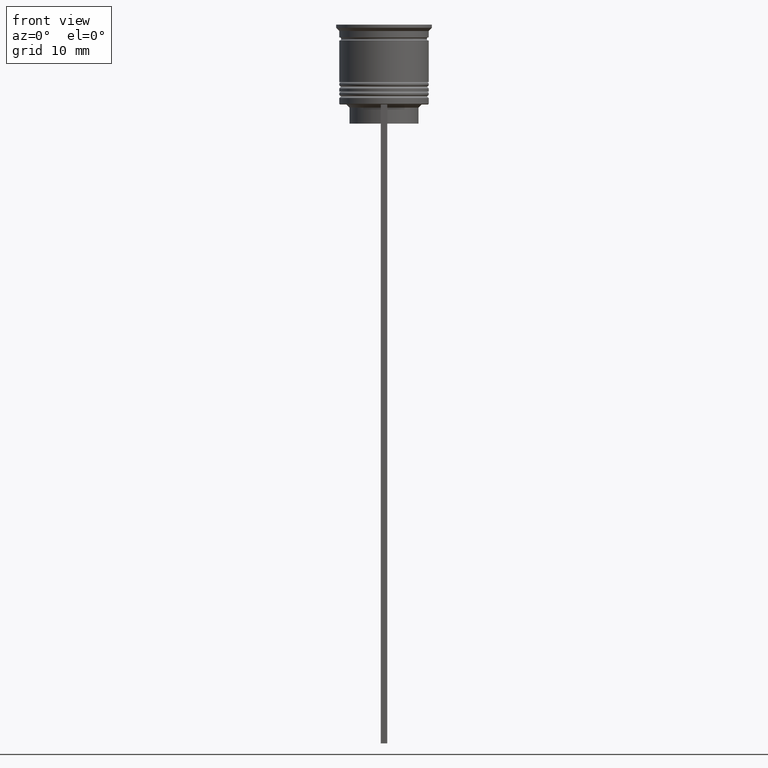
[diagram: clean part render]
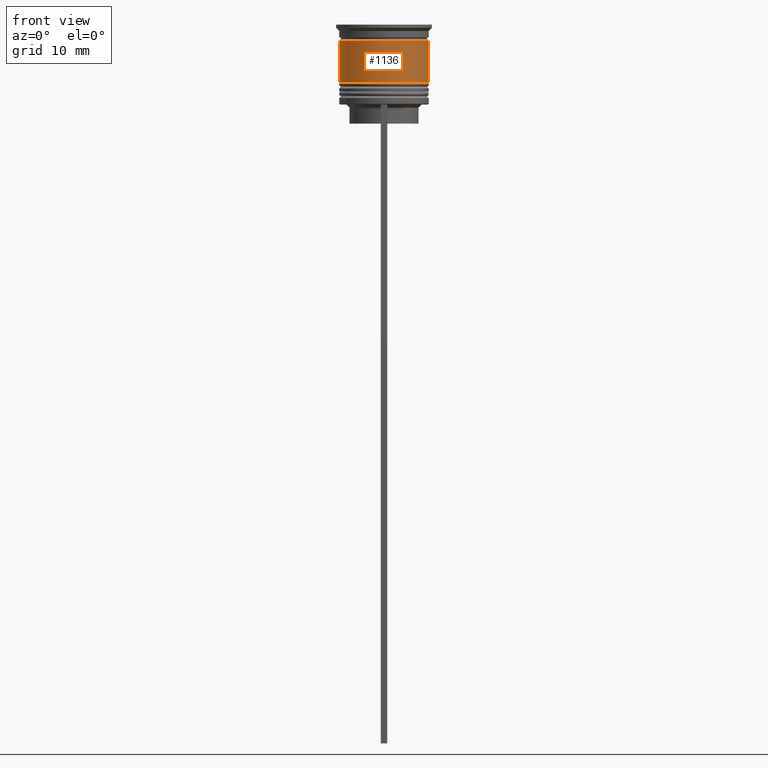
[diagram: same view with one face highlighted and labeled with its STEP entity id]
A machine part, front view. The second image highlights one B-rep face of the part: STEP entity #1136.
In plain terms, the highlighted cylindrical surface (partial cylindrical patch) has radius 7 mm, axis along (-0, -0, 1).
Its self-contained STEP definition (entity closure, byte-faithful):
#2 = ORIENTED_EDGE ( 'NONE', *, *, #660, .F. ) ;
#41 = CARTESIAN_POINT ( 'NONE',  ( 7.000000000000000888, 0.000000000000000000, -9.000000000000001776 ) ) ;
#89 = AXIS2_PLACEMENT_3D ( 'NONE', #438, #1421, #1990 ) ;
#130 = CIRCLE ( 'NONE', #1256, 6.999999999999997335 ) ;
#240 = DIRECTION ( 'NONE',  ( 1.000000000000000000, 0.000000000000000000, 0.000000000000000000 ) ) ;
#253 = DIRECTION ( 'NONE',  ( -0.000000000000000000, -0.000000000000000000, 1.000000000000000000 ) ) ;
#299 = CARTESIAN_POINT ( 'NONE',  ( -6.999999999999997335, 8.572527594031471218E-16, -2.500000000000000444 ) ) ;
#334 = EDGE_CURVE ( 'NONE', #1037, #1095, #2170, .T. ) ;
#383 = LINE ( 'NONE', #1496, #2090 ) ;
#412 = EDGE_CURVE ( 'NONE', #2080, #779, #130, .T. ) ;
#438 = CARTESIAN_POINT ( 'NONE',  ( 0.000000000000000000, 0.000000000000000000, -9.000000000000001776 ) ) ;
#451 = CARTESIAN_POINT ( 'NONE',  ( 6.999999999999997335, 0.000000000000000000, -2.500000000000000444 ) ) ;
#553 = CARTESIAN_POINT ( 'NONE',  ( -7.000000000000000888, 8.572527594031474176E-16, -9.000000000000001776 ) ) ;
#643 = CARTESIAN_POINT ( 'NONE',  ( 6.999999999999999112, 0.000000000000000000, 0.000000000000000000 ) ) ;
#660 = EDGE_CURVE ( 'NONE', #1037, #2080, #383, .T. ) ;
#665 = CARTESIAN_POINT ( 'NONE',  ( 0.000000000000000000, 0.000000000000000000, -2.500000000000000444 ) ) ;
#673 = EDGE_LOOP ( 'NONE', ( #2, #1740, #1947, #1555 ) ) ;
#774 = CARTESIAN_POINT ( 'NONE',  ( 0.000000000000000000, 0.000000000000000000, 0.000000000000000000 ) ) ;
#779 = VERTEX_POINT ( 'NONE', #451 ) ;
#795 = VECTOR ( 'NONE', #1983, 1000.000000000000000 ) ;
#981 = FACE_OUTER_BOUND ( 'NONE', #673, .T. ) ;
#1037 = VERTEX_POINT ( 'NONE', #553 ) ;
#1095 = VERTEX_POINT ( 'NONE', #41 ) ;
#1136 = ADVANCED_FACE ( 'NONE', ( #981 ), #2136, .T. ) ;
#1152 = DIRECTION ( 'NONE',  ( -0.000000000000000000, -0.000000000000000000, 1.000000000000000000 ) ) ;
#1246 = AXIS2_PLACEMENT_3D ( 'NONE', #774, #253, #240 ) ;
#1256 = AXIS2_PLACEMENT_3D ( 'NONE', #665, #1474, #1432 ) ;
#1262 = EDGE_CURVE ( 'NONE', #1095, #779, #1423, .T. ) ;
#1421 = DIRECTION ( 'NONE',  ( -0.000000000000000000, -0.000000000000000000, 1.000000000000000000 ) ) ;
#1423 = LINE ( 'NONE', #643, #795 ) ;
#1432 = DIRECTION ( 'NONE',  ( 1.000000000000000000, 0.000000000000000000, 0.000000000000000000 ) ) ;
#1474 = DIRECTION ( 'NONE',  ( -0.000000000000000000, -0.000000000000000000, 1.000000000000000000 ) ) ;
#1496 = CARTESIAN_POINT ( 'NONE',  ( -6.999999999999999112, 8.572527594031472204E-16, 0.000000000000000000 ) ) ;
#1555 = ORIENTED_EDGE ( 'NONE', *, *, #412, .F. ) ;
#1740 = ORIENTED_EDGE ( 'NONE', *, *, #334, .T. ) ;
#1947 = ORIENTED_EDGE ( 'NONE', *, *, #1262, .T. ) ;
#1983 = DIRECTION ( 'NONE',  ( -0.000000000000000000, -0.000000000000000000, 1.000000000000000000 ) ) ;
#1990 = DIRECTION ( 'NONE',  ( 1.000000000000000000, 0.000000000000000000, 0.000000000000000000 ) ) ;
#2080 = VERTEX_POINT ( 'NONE', #299 ) ;
#2090 = VECTOR ( 'NONE', #1152, 1000.000000000000000 ) ;
#2136 = CYLINDRICAL_SURFACE ( 'NONE', #1246, 6.999999999999999112 ) ;
#2170 = CIRCLE ( 'NONE', #89, 7.000000000000000888 ) ;